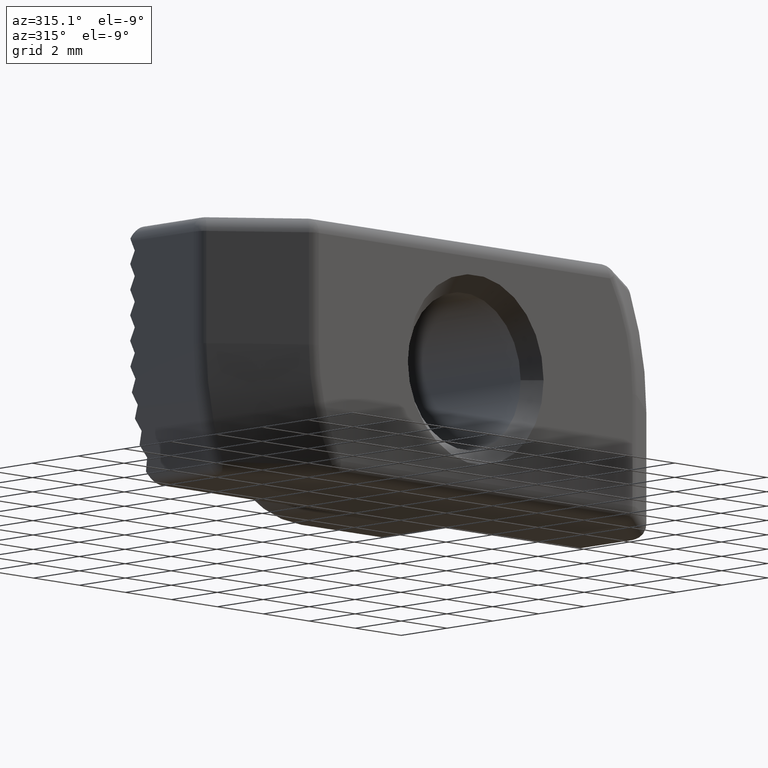
[diagram: clean part render]
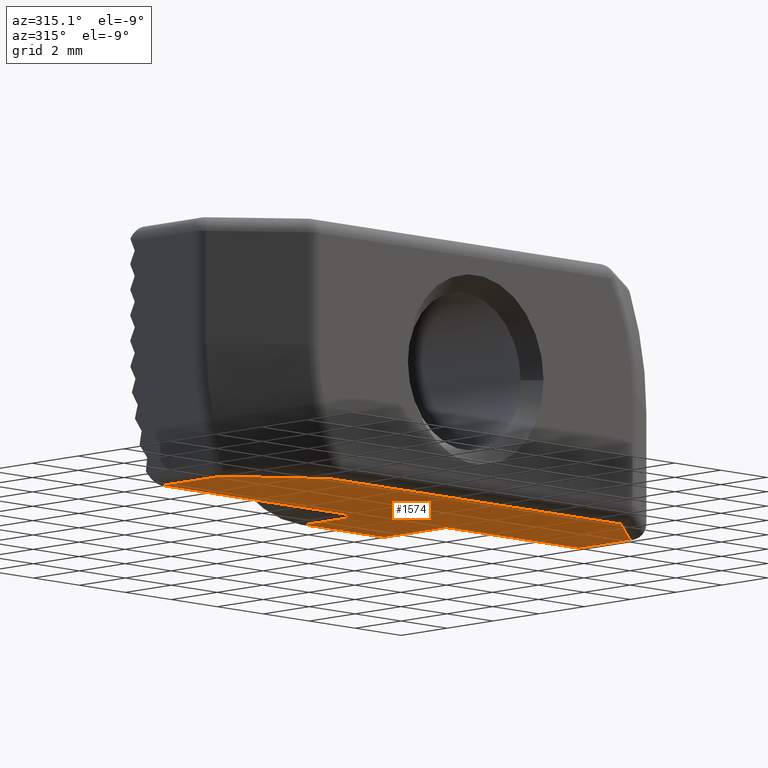
[diagram: same view with one face highlighted and labeled with its STEP entity id]
A machine part, auxiliary view. The second image highlights one B-rep face of the part: STEP entity #1574.
In plain terms, the highlighted planar face has unit normal (0, 0, -1).
Its self-contained STEP definition (entity closure, byte-faithful):
#33=B_SPLINE_CURVE_WITH_KNOTS('',3,(#2470,#2471,#2472,#2473),
 .UNSPECIFIED.,.F.,.F.,(4,4),(-0.515121076214052,-0.176231007186256),
 .UNSPECIFIED.);
#97=LINE('',#2456,#227);
#99=LINE('',#2462,#229);
#100=LINE('',#2464,#230);
#101=LINE('',#2466,#231);
#102=LINE('',#2468,#232);
#103=LINE('',#2475,#233);
#104=LINE('',#2477,#234);
#105=LINE('',#2479,#235);
#106=LINE('',#2480,#236);
#227=VECTOR('',#1913,5.75);
#229=VECTOR('',#1919,2.70901699437495);
#230=VECTOR('',#1920,2.25733966852529);
#231=VECTOR('',#1921,3.16986493998181);
#232=VECTOR('',#1922,12.6700963714095);
#233=VECTOR('',#1923,2.56635666290024);
#234=VECTOR('',#1924,8.56227189477185);
#235=VECTOR('',#1925,2.4);
#236=VECTOR('',#1926,3.5);
#351=PLANE('',#1685);
#437=FACE_OUTER_BOUND('',#541,.T.);
#541=EDGE_LOOP('',(#1104,#1105,#1106,#1107,#1108,#1109,#1110,#1111,#1112,
#1113));
#707=VERTEX_POINT('',#2453);
#708=VERTEX_POINT('',#2455);
#710=VERTEX_POINT('',#2461);
#711=VERTEX_POINT('',#2463);
#712=VERTEX_POINT('',#2465);
#713=VERTEX_POINT('',#2467);
#714=VERTEX_POINT('',#2469);
#715=VERTEX_POINT('',#2474);
#716=VERTEX_POINT('',#2476);
#717=VERTEX_POINT('',#2478);
#855=EDGE_CURVE('',#707,#708,#97,.T.);
#858=EDGE_CURVE('',#710,#708,#99,.T.);
#859=EDGE_CURVE('',#711,#707,#100,.T.);
#860=EDGE_CURVE('',#712,#711,#101,.T.);
#861=EDGE_CURVE('',#713,#712,#102,.T.);
#862=EDGE_CURVE('',#714,#713,#33,.T.);
#863=EDGE_CURVE('',#715,#714,#103,.T.);
#864=EDGE_CURVE('',#715,#716,#104,.T.);
#865=EDGE_CURVE('',#716,#717,#105,.T.);
#866=EDGE_CURVE('',#710,#717,#106,.T.);
#1104=ORIENTED_EDGE('',*,*,#858,.T.);
#1105=ORIENTED_EDGE('',*,*,#855,.F.);
#1106=ORIENTED_EDGE('',*,*,#859,.F.);
#1107=ORIENTED_EDGE('',*,*,#860,.F.);
#1108=ORIENTED_EDGE('',*,*,#861,.F.);
#1109=ORIENTED_EDGE('',*,*,#862,.F.);
#1110=ORIENTED_EDGE('',*,*,#863,.F.);
#1111=ORIENTED_EDGE('',*,*,#864,.T.);
#1112=ORIENTED_EDGE('',*,*,#865,.T.);
#1113=ORIENTED_EDGE('',*,*,#866,.F.);
#1574=ADVANCED_FACE('',(#437),#351,.T.);
#1685=AXIS2_PLACEMENT_3D('',#2460,#1917,#1918);
#1913=DIRECTION('',(-1.,0.,0.));
#1917=DIRECTION('center_axis',(0.,0.,-1.));
#1918=DIRECTION('ref_axis',(-1.,0.,0.));
#1919=DIRECTION('',(0.,-1.,0.));
#1920=DIRECTION('',(0.,1.,0.));
#1921=DIRECTION('',(0.767076870152409,0.641555200491106,0.));
#1922=DIRECTION('',(1.,0.,0.));
#1923=DIRECTION('',(0.,-1.,0.));
#1924=DIRECTION('',(1.,0.,0.));
#1925=DIRECTION('',(0.,1.,0.));
#1926=DIRECTION('',(-1.,0.,0.));
#2453=CARTESIAN_POINT('',(9.25,-0.509016994374948,-4.));
#2455=CARTESIAN_POINT('',(3.5,-0.509016994374948,-4.));
#2456=CARTESIAN_POINT('',(4.875,-0.509016994374948,-4.));
#2460=CARTESIAN_POINT('Origin',(0.,-1.61447463981806,-4.));
#2461=CARTESIAN_POINT('',(3.5,2.2,-4.));
#2462=CARTESIAN_POINT('',(3.5,-0.807237319909028,-4.));
#2463=CARTESIAN_POINT('',(9.25,-2.76635666290024,-4.));
#2464=CARTESIAN_POINT('',(9.25,-2.30723731990903,-4.));
#2465=CARTESIAN_POINT('',(6.8184699230329,-4.8,-4.));
#2466=CARTESIAN_POINT('',(5.52666250491495,-5.88042074969865,-4.));
#2467=CARTESIAN_POINT('',(-5.8516264483766,-4.8,-4.));
#2468=CARTESIAN_POINT('',(-3.5,-4.8,-4.));
#2469=CARTESIAN_POINT('',(-8.56227189477185,-2.76635666290024,-4.));
#2470=CARTESIAN_POINT('Ctrl Pts',(-8.56227189477186,-2.76635666290024,-4.));
#2471=CARTESIAN_POINT('Ctrl Pts',(-7.66905012195268,-3.45787185373182,-4.));
#2472=CARTESIAN_POINT('Ctrl Pts',(-6.76931436176929,-4.14131189762828,-4.));
#2473=CARTESIAN_POINT('Ctrl Pts',(-5.85162644837422,-4.79999999999948,-4.));
#2474=CARTESIAN_POINT('',(-8.56227189477185,-0.2,-4.));
#2475=CARTESIAN_POINT('',(-8.56227189477185,-1.6,-4.));
#2476=CARTESIAN_POINT('',(0.,-0.2,-4.));
#2477=CARTESIAN_POINT('',(-4.875,-0.2,-4.));
#2478=CARTESIAN_POINT('',(0.,2.2,-4.));
#2479=CARTESIAN_POINT('',(0.,25.8424980739588,-4.));
#2480=CARTESIAN_POINT('',(2.,2.2,-4.));